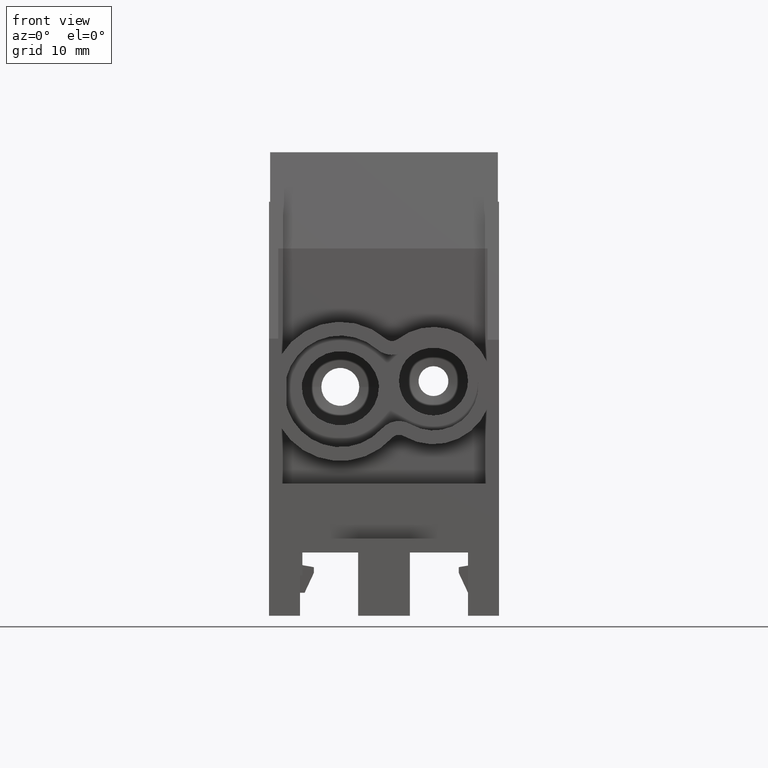
[diagram: clean part render]
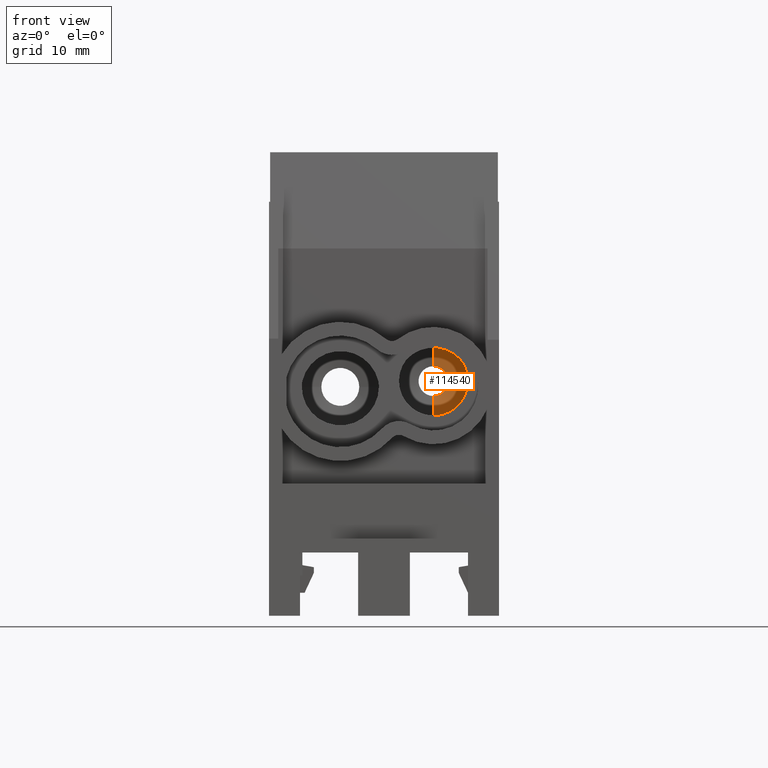
[diagram: same view with one face highlighted and labeled with its STEP entity id]
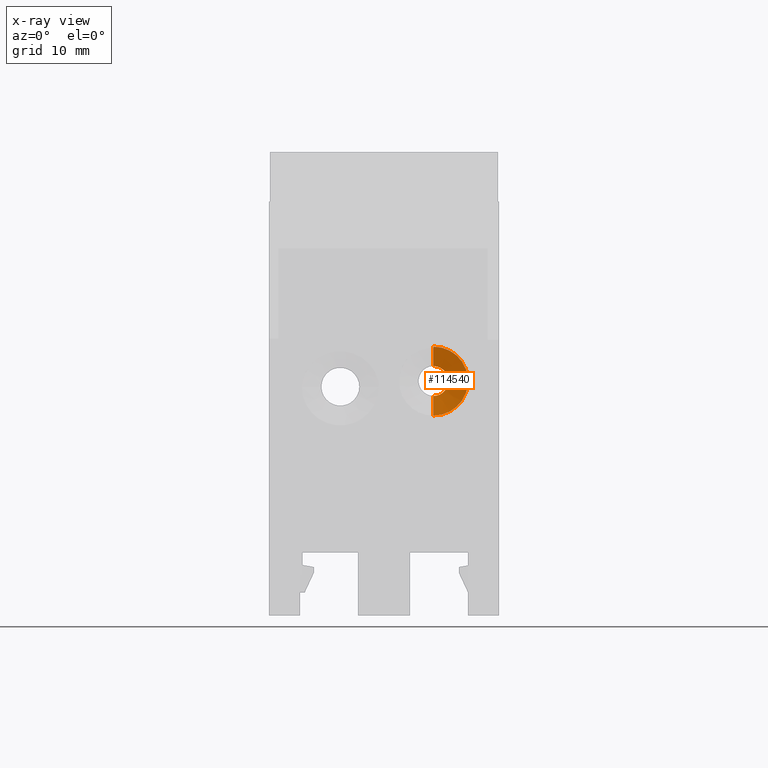
[diagram: x-ray of the same camera — body ghosted, the highlighted face saturated]
A machine part, front view. The second image highlights one B-rep face of the part: STEP entity #114540.
The next image is the same camera in x-ray: the body ghosted, the highlighted face saturated — about 2% of this face is hidden behind the body in this view.
In plain terms, the highlighted conical surface has half-angle 80 deg.
Its self-contained STEP definition (entity closure, byte-faithful):
#12940=CARTESIAN_POINT('',(4.3,-0.300000000000091,-17.845359338705));
#12950=VERTEX_POINT('',#12940);
#13220=CARTESIAN_POINT('',(4.3,-0.299999999999846,-23.845359338705));
#13230=VERTEX_POINT('',#13220);
#13260=CARTESIAN_POINT('',(4.3,-0.30000000000009,-20.845359338705));
#13270=DIRECTION('',(2.77555756156289E-16,1.,5.80952514931361E-16));
#13280=DIRECTION('',(5.55111512312577E-17,5.80952514931361E-16,-1.));
#13290=AXIS2_PLACEMENT_3D('',#13260,#13270,#13280);
#13300=CIRCLE('',#13290,3.);
#13310=EDGE_CURVE('',#12950,#13230,#13300,.T.);
#46760=CARTESIAN_POINT('',(4.3,3.33066907387547E-15,-19.5467438845895));
#46770=VERTEX_POINT('',#46760);
#46950=CARTESIAN_POINT('',(4.3,3.33066907387547E-15,-22.1439747928205));
#46960=VERTEX_POINT('',#46950);
#46990=CARTESIAN_POINT('',(4.3,3.49720252756924E-15,-20.845359338705));
#47000=DIRECTION('',(0.,-1.,0.));
#47010=DIRECTION('',(0.,0.,-1.));
#47020=AXIS2_PLACEMENT_3D('',#46990,#47000,#47010);
#47030=CIRCLE('',#47020,1.29861545411549);
#75990=CARTESIAN_POINT('',(4.3,-0.771019057874465,-26.5166411583228));
#76000=DIRECTION('',(0.,-0.173648177666926,-0.984807753012209));
#76010=VECTOR('',#76000,5.75877048314377);
#76020=LINE('',#75990,#76010);
#76030=EDGE_CURVE('',#46960,#13230,#76020,.T.);
#76070=CARTESIAN_POINT('',(4.3,-0.771019057874465,-15.1740775190871));
#76080=DIRECTION('',(1.54230564024017E-16,-0.173648177666926,
0.984807753012209));
#76090=VECTOR('',#76080,5.75877048314377);
#76100=LINE('',#76070,#76090);
#76110=EDGE_CURVE('',#46770,#12950,#76100,.T.);
#113630=EDGE_CURVE('',#46960,#46770,#47030,.T.);
#114430=CARTESIAN_POINT('',(4.3,-0.771019057874465,-20.845359338705));
#114440=DIRECTION('',(0.,-1.,0.));
#114450=DIRECTION('',(0.,0.,-1.));
#114460=AXIS2_PLACEMENT_3D('',#114430,#114440,#114450);
#114470=CONICAL_SURFACE('',#114460,5.67128181961785,1.39626340159547);
#114480=ORIENTED_EDGE('',*,*,#76030,.T.);
#114490=ORIENTED_EDGE('',*,*,#113630,.F.);
#114500=ORIENTED_EDGE('',*,*,#76110,.F.);
#114510=ORIENTED_EDGE('',*,*,#13310,.F.);
#114520=EDGE_LOOP('',(#114510,#114500,#114490,#114480));
#114530=FACE_OUTER_BOUND('',#114520,.T.);
#114540=ADVANCED_FACE('',(#114530),#114470,.F.);